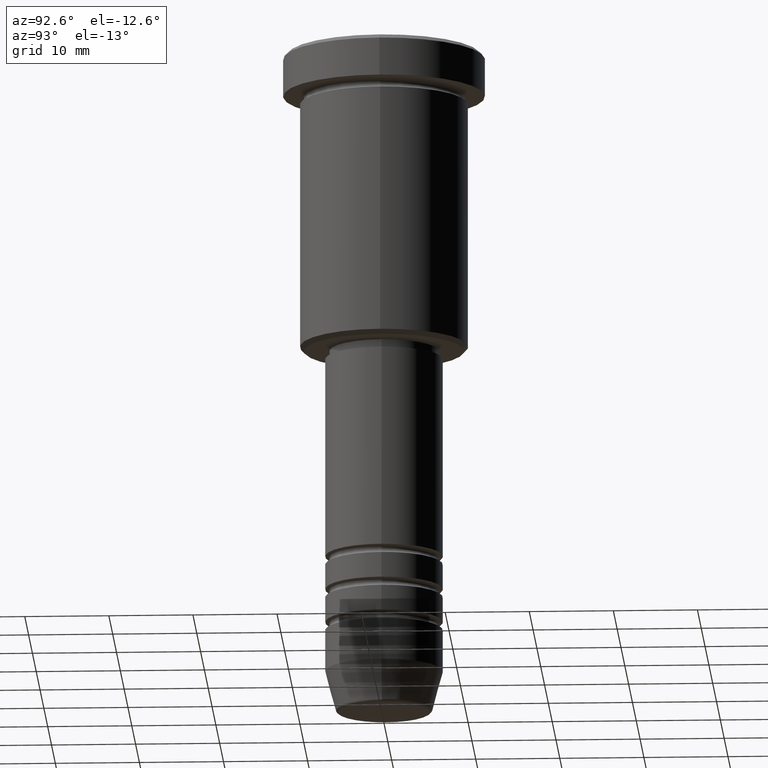
[diagram: clean part render]
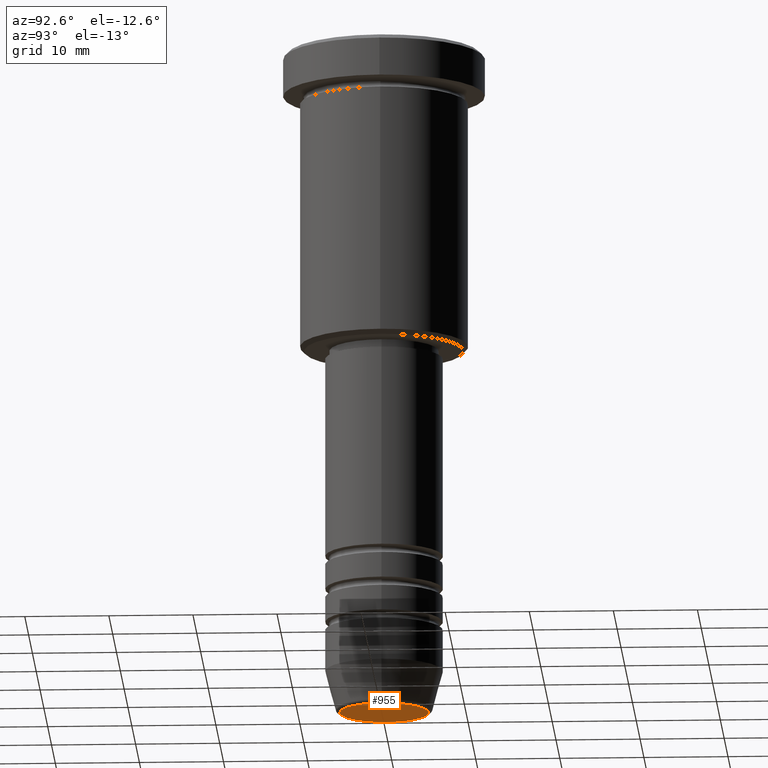
[diagram: same view with one face highlighted and labeled with its STEP entity id]
A machine part, auxiliary view. The second image highlights one B-rep face of the part: STEP entity #955.
In plain terms, the highlighted planar face has unit normal (0, -0, 1).
Its self-contained STEP definition (entity closure, byte-faithful):
#80 = CARTESIAN_POINT ( 'NONE',  ( -5.276590543854906556, 6.757689212787772818E-16, -80.00000000000000000 ) ) ;
#132 = AXIS2_PLACEMENT_3D ( 'NONE', #1058, #880, #782 ) ;
#204 = FACE_OUTER_BOUND ( 'NONE', #876, .T. ) ;
#282 = DIRECTION ( 'NONE',  ( 1.000000000000000000, 0.000000000000000000, 0.000000000000000000 ) ) ;
#284 = VERTEX_POINT ( 'NONE', #729 ) ;
#569 = DIRECTION ( 'NONE',  ( 0.000000000000000000, -0.000000000000000000, 1.000000000000000000 ) ) ;
#576 = DIRECTION ( 'NONE',  ( 0.000000000000000000, 0.000000000000000000, -1.000000000000000000 ) ) ;
#595 = EDGE_CURVE ( 'NONE', #284, #739, #1164, .T. ) ;
#656 = ORIENTED_EDGE ( 'NONE', *, *, #595, .T. ) ;
#671 = CIRCLE ( 'NONE', #891, 5.276590543854906556 ) ;
#682 = CARTESIAN_POINT ( 'NONE',  ( 0.000000000000000000, 0.000000000000000000, -80.00000000000000000 ) ) ;
#729 = CARTESIAN_POINT ( 'NONE',  ( 5.276590543854906556, 0.000000000000000000, -80.00000000000000000 ) ) ;
#739 = VERTEX_POINT ( 'NONE', #80 ) ;
#760 = PLANE ( 'NONE',  #890 ) ;
#763 = ORIENTED_EDGE ( 'NONE', *, *, #964, .T. ) ;
#773 = DIRECTION ( 'NONE',  ( 1.000000000000000000, 0.000000000000000000, 0.000000000000000000 ) ) ;
#782 = DIRECTION ( 'NONE',  ( 1.000000000000000000, 0.000000000000000000, 0.000000000000000000 ) ) ;
#876 = EDGE_LOOP ( 'NONE', ( #656, #763 ) ) ;
#880 = DIRECTION ( 'NONE',  ( 0.000000000000000000, 0.000000000000000000, -1.000000000000000000 ) ) ;
#890 = AXIS2_PLACEMENT_3D ( 'NONE', #682, #569, #773 ) ;
#891 = AXIS2_PLACEMENT_3D ( 'NONE', #1045, #576, #282 ) ;
#955 = ADVANCED_FACE ( 'NONE', ( #204 ), #760, .F. ) ;
#964 = EDGE_CURVE ( 'NONE', #739, #284, #671, .T. ) ;
#1045 = CARTESIAN_POINT ( 'NONE',  ( 0.000000000000000000, 0.000000000000000000, -80.00000000000000000 ) ) ;
#1058 = CARTESIAN_POINT ( 'NONE',  ( 0.000000000000000000, 0.000000000000000000, -80.00000000000000000 ) ) ;
#1164 = CIRCLE ( 'NONE', #132, 5.276590543854906556 ) ;